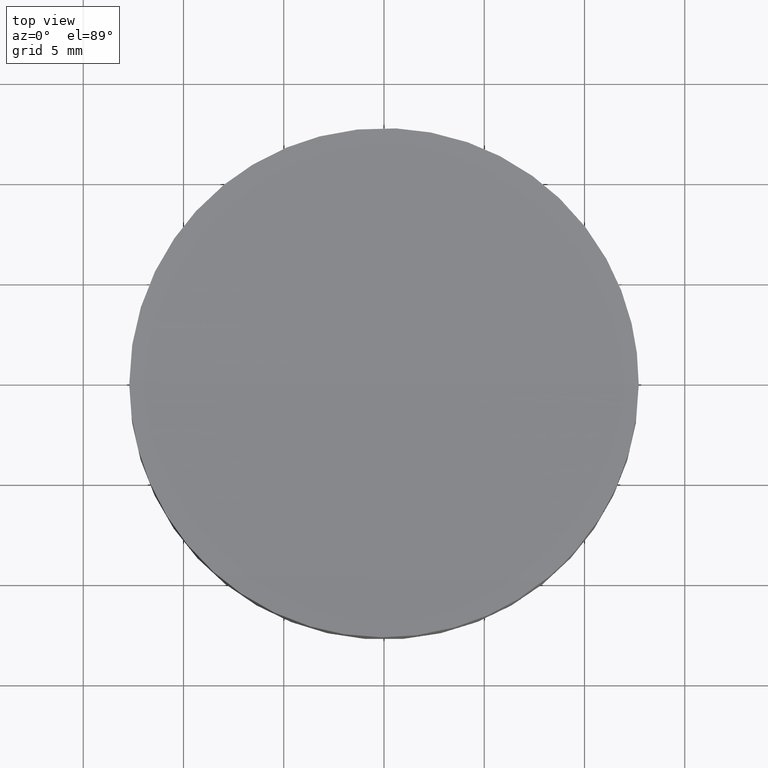
[diagram: clean part render]
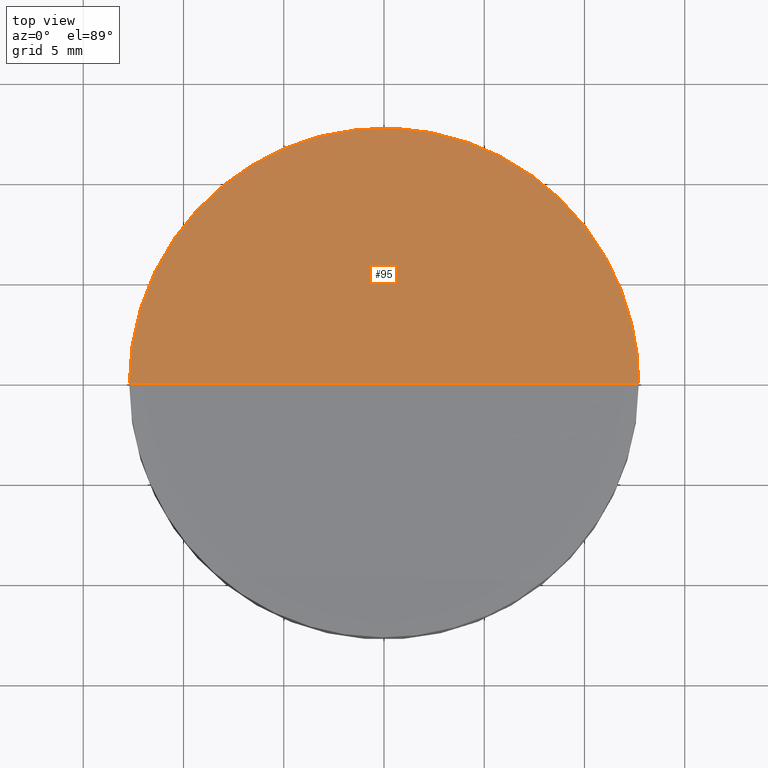
[diagram: same view with one face highlighted and labeled with its STEP entity id]
A machine part, top view. The second image highlights one B-rep face of the part: STEP entity #95.
In plain terms, the highlighted cylindrical surface (partial cylindrical patch) has radius 200 mm, axis along (1, -0, -0).
Its self-contained STEP definition (entity closure, byte-faithful):
#95 = ADVANCED_FACE ( 'NONE', ( #1327 ), #1364, .F. ) ;
#388 = VERTEX_POINT ( 'NONE', #1684 ) ;
#389 = EDGE_CURVE ( 'NONE', #713, #388, #1699, .T. ) ;
#614 = ORIENTED_EDGE ( 'NONE', *, *, #714, .F. ) ;
#627 = ORIENTED_EDGE ( 'NONE', *, *, #389, .T. ) ;
#644 = EDGE_LOOP ( 'NONE', ( #614, #627 ) ) ;
#713 = VERTEX_POINT ( 'NONE', #2537 ) ;
#714 = EDGE_CURVE ( 'NONE', #713, #388, #2948, .T. ) ;
#1302 = CARTESIAN_POINT ( 'NONE',  ( -12.70000000000000500, 0.0000000000000000000, 202.0000000000000000 ) ) ;
#1308 = AXIS2_PLACEMENT_3D ( 'NONE', #1302, #1373, #1361 ) ;
#1327 = FACE_OUTER_BOUND ( 'NONE', #644, .T. ) ;
#1361 = DIRECTION ( 'NONE',  ( 0.0000000000000000000, 0.0000000000000000000, -1.000000000000000000 ) ) ;
#1364 = CYLINDRICAL_SURFACE ( 'NONE', #1308, 200.0000000000000000 ) ;
#1373 = DIRECTION ( 'NONE',  ( 1.000000000000000000, -0.0000000000000000000, -0.0000000000000000000 ) ) ;
#1684 = CARTESIAN_POINT ( 'NONE',  ( 12.70000000000000500, 1.555301381749067500E-015, 1.999999999999995800 ) ) ;
#1696 = DIRECTION ( 'NONE',  ( 1.000000000000000000, -0.0000000000000000000, -0.0000000000000000000 ) ) ;
#1697 = VECTOR ( 'NONE', #1696, 1000.000000000000000 ) ;
#1698 = CARTESIAN_POINT ( 'NONE',  ( -12.70000000000000500, 0.0000000000000000000, 2.000000000000001800 ) ) ;
#1699 = LINE ( 'NONE', #1698, #1697 ) ;
#2537 = CARTESIAN_POINT ( 'NONE',  ( -12.70000000000000500, 7.735410065608419200E-016, 2.000000000000001300 ) ) ;
#2877 = CARTESIAN_POINT ( 'NONE',  ( 12.70000000000000500, 1.555301381749067500E-015, 1.999999999999995800 ) ) ;
#2878 = CARTESIAN_POINT ( 'NONE',  ( 12.70000000000001000, 0.4144861277153563100, 2.000000000000001800 ) ) ;
#2879 = CARTESIAN_POINT ( 'NONE',  ( 12.67976090682242200, 0.8302186030310151300, 2.001288379649720700 ) ) ;
#2880 = CARTESIAN_POINT ( 'NONE',  ( 12.59745373520595800, 1.664259286393326300, 2.006489720899927500 ) ) ;
#2881 = CARTESIAN_POINT ( 'NONE',  ( 12.53573625039880600, 2.077861640798814400, 2.010379976068354100 ) ) ;
#2882 = CARTESIAN_POINT ( 'NONE',  ( 12.29217045674118200, 3.298683800227344400, 2.025548655720571700 ) ) ;
#2883 = CARTESIAN_POINT ( 'NONE',  ( 12.05204324687147200, 4.090463364847195700, 2.040352765529843500 ) ) ;
#2884 = CARTESIAN_POINT ( 'NONE',  ( 11.57398288561062900, 5.244647691170178500, 2.068407264475261400 ) ) ;
#2885 = CARTESIAN_POINT ( 'NONE',  ( 11.39378296126806600, 5.625417092132650500, 2.078791131580169300 ) ) ;
#2886 = CARTESIAN_POINT ( 'NONE',  ( 11.00056021974050900, 6.360132269128002700, 2.100815933656190500 ) ) ;
#2948 = B_SPLINE_CURVE_WITH_KNOTS ( 'NONE', 3,
 ( #2989, #2988, #2987, #2986, #2985, #2984, #2983, #2982, #2981, #2980, #2979, #2978, #2977, #2976, #2975, #2974, #2973, #2972, #2971, #2970, #2969, #2968, #2967, #2966, #2965, #2964, #2963, #2962, #2961, #2960, #2959, #2958, #2957, #2956, #2955, #2954, #2953, #2952, #2951, #2886, #2885, #2884, #2883, #2882, #2881, #2880, #2879, #2878, #2877 ),
 .UNSPECIFIED., .F., .F.,
 ( 4, 2, 2, 2, 2, 2, 2, 2, 2, 1, 2, 2, 2, 2, 2, 2, 2, 2, 2, 2, 2, 2, 2, 2, 4 ),
 ( 7.472843920192310500E-019, 0.002482248752387867100, 0.003723373128581800000, 0.004964497504775733400, 0.007446746257163597500, 0.008687870633357526500, 0.009928995009551458100, 0.01241124376193931600, 0.01365236813813324800, 0.01489349251432717600, 0.01613461689052110200, 0.01737574126671503200, 0.01985799001910288800, 0.02109911439529681800, 0.02234023877149074500, 0.02482248752387859700, 0.02606361190007252700, 0.02730473627626645000, 0.02978698502865430300, 0.03226923378104214900, 0.03351035815723607500, 0.03475148253342999500, 0.03723373128581785500, 0.03847485566201177400, 0.03971598003820570000 ),
 .UNSPECIFIED. ) ;
#2951 = CARTESIAN_POINT ( 'NONE',  ( 10.78710851142859500, 6.715608279116313600, 2.112484159309983200 ) ) ;
#2952 = CARTESIAN_POINT ( 'NONE',  ( 10.09731352463083500, 7.747172256300341800, 2.148918301366808500 ) ) ;
#2953 = CARTESIAN_POINT ( 'NONE',  ( 9.571352663058334500, 8.389407237764459100, 2.175151990581756700 ) ) ;
#2954 = CARTESIAN_POINT ( 'NONE',  ( 8.385401806321377500, 9.574861991080116000, 2.228445334076837500 ) ) ;
#2955 = CARTESIAN_POINT ( 'NONE',  ( 7.743981436524003400, 10.09977743936941500, 2.254645977211236400 ) ) ;
#2956 = CARTESIAN_POINT ( 'NONE',  ( 6.711936032217841400, 10.78939770807072800, 2.291107141918747600 ) ) ;
#2957 = CARTESIAN_POINT ( 'NONE',  ( 6.356182095544022900, 11.00285800646163100, 2.302789429126801800 ) ) ;
#2958 = CARTESIAN_POINT ( 'NONE',  ( 5.620620563876059400, 11.39616425026441600, 2.324848229733345500 ) ) ;
#2959 = CARTESIAN_POINT ( 'NONE',  ( 5.239936807328471800, 11.57610430663711700, 2.335232946739344200 ) ) ;
#2960 = CARTESIAN_POINT ( 'NONE',  ( 4.086505127549452600, 12.05333939181437100, 2.363283479942750500 ) ) ;
#2961 = CARTESIAN_POINT ( 'NONE',  ( 3.294701605476496400, 12.29327893600819300, 2.378103151007764400 ) ) ;
#2962 = CARTESIAN_POINT ( 'NONE',  ( 2.072906252431167200, 12.53656655889243000, 2.393283927966209000 ) ) ;
#2963 = CARTESIAN_POINT ( 'NONE',  ( 1.658104162780284400, 12.59824719085119300, 2.397179758355953500 ) ) ;
#2964 = CARTESIAN_POINT ( 'NONE',  ( 0.8251150661137934800, 12.68007597864031900, 2.402361351954454400 ) ) ;
#2965 = CARTESIAN_POINT ( 'NONE',  ( 0.4097417701725463700, 12.70014740819631700, 2.403641676928040600 ) ) ;
#2966 = CARTESIAN_POINT ( 'NONE',  ( -0.8331147684233760600, 12.69970274515089200, 2.403613383726219700 ) ) ;
#2967 = CARTESIAN_POINT ( 'NONE',  ( -1.657365612972364000, 12.61910536619644500, 2.398434712431031000 ) ) ;
#2968 = CARTESIAN_POINT ( 'NONE',  ( -2.887090310335397500, 12.37454563992251800, 2.383173826507848100 ) ) ;
#2969 = CARTESIAN_POINT ( 'NONE',  ( -3.294718615978973600, 12.27222493930153200, 2.376837153929217000 ) ) ;
#2970 = CARTESIAN_POINT ( 'NONE',  ( -4.089904550303071300, 12.03060083656270200, 2.362129611786817600 ) ) ;
#2971 = CARTESIAN_POINT ( 'NONE',  ( -4.869469068220247700, 11.75119573401173400, 2.345337562814080000 ) ) ;
#2972 = CARTESIAN_POINT ( 'NONE',  ( -5.618239315415783300, 11.39728586267667300, 2.324913031262356300 ) ) ;
#2973 = CARTESIAN_POINT ( 'NONE',  ( -6.351390703768594800, 11.00557014283835500, 2.302939664001123300 ) ) ;
#2974 = CARTESIAN_POINT ( 'NONE',  ( -6.712069616490268200, 10.78946141326327000, 2.291108004952615100 ) ) ;
#2975 = CARTESIAN_POINT ( 'NONE',  ( -7.753407470635663000, 10.09317081466105700, 2.254301721370537000 ) ) ;
#2976 = CARTESIAN_POINT ( 'NONE',  ( -8.392760262152716400, 9.567535623547597000, 2.228115316494326600 ) ) ;
#2977 = CARTESIAN_POINT ( 'NONE',  ( -9.271519500645128500, 8.689100461532985900, 2.188625335927588000 ) ) ;
#2978 = CARTESIAN_POINT ( 'NONE',  ( -9.550964742982245100, 8.381183918893571100, 2.175425476067429600 ) ) ;
#2979 = CARTESIAN_POINT ( 'NONE',  ( -10.08205419769909700, 7.734167993951780700, 2.149337071416413700 ) ) ;
#2980 = CARTESIAN_POINT ( 'NONE',  ( -10.33129341991312900, 7.397742248627085200, 2.136564965827267000 ) ) ;
#2981 = CARTESIAN_POINT ( 'NONE',  ( -11.02265095616004400, 6.362391242332801500, 2.100032531708701200 ) ) ;
#2982 = CARTESIAN_POINT ( 'NONE',  ( -11.41283538777927700, 5.632959334504684900, 2.077861389834879400 ) ) ;
#2983 = CARTESIAN_POINT ( 'NONE',  ( -11.89108636183868700, 4.479433641486018300, 2.049799678562251900 ) ) ;
#2984 = CARTESIAN_POINT ( 'NONE',  ( -12.03304610097763200, 4.082848089856195600, 2.041280196571262400 ) ) ;
#2985 = CARTESIAN_POINT ( 'NONE',  ( -12.27493101618141600, 3.284800685137989600, 2.026578369999672000 ) ) ;
#2986 = CARTESIAN_POINT ( 'NONE',  ( -12.37552371524483300, 2.882303675063078600, 2.020358284304327500 ) ) ;
#2987 = CARTESIAN_POINT ( 'NONE',  ( -12.61760998082340600, 1.664621632474753100, 2.005279730504226300 ) ) ;
#2988 = CARTESIAN_POINT ( 'NONE',  ( -12.70000000000000600, 0.8393456842021888000, 2.000000000000001800 ) ) ;
#2989 = CARTESIAN_POINT ( 'NONE',  ( -12.70000000000000500, 7.735410065608419200E-016, 2.000000000000001300 ) ) ;